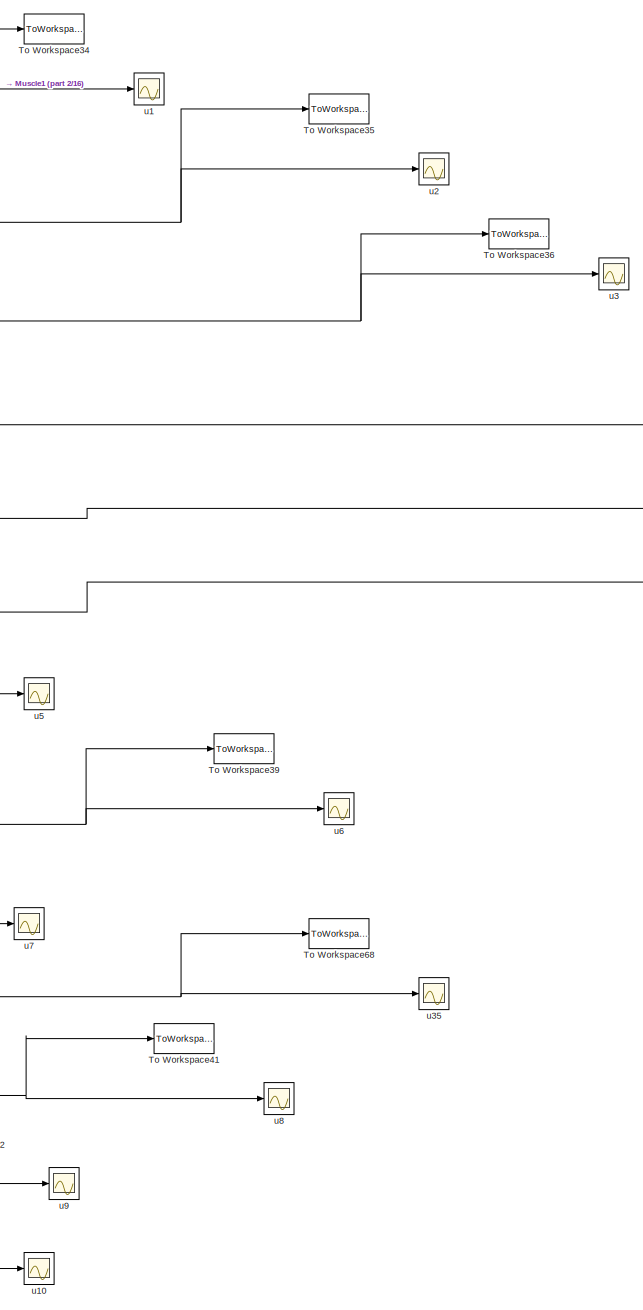
[diagram: root canvas - part 1/16, top left region]
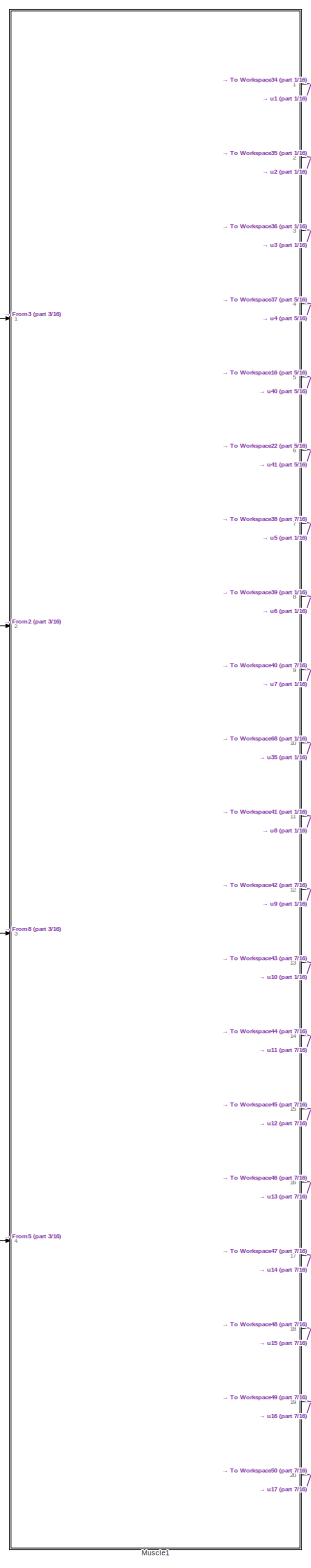
[diagram: root canvas - part 2/16, top left region]
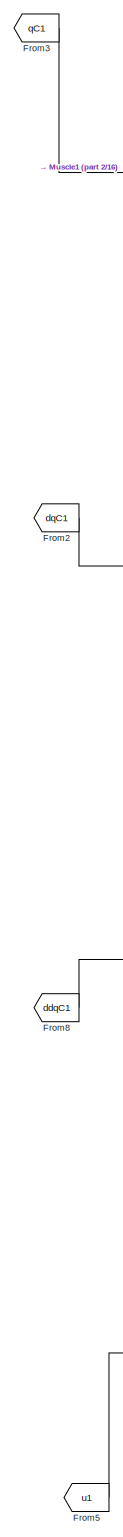
[diagram: root canvas - part 3/16, top left region]
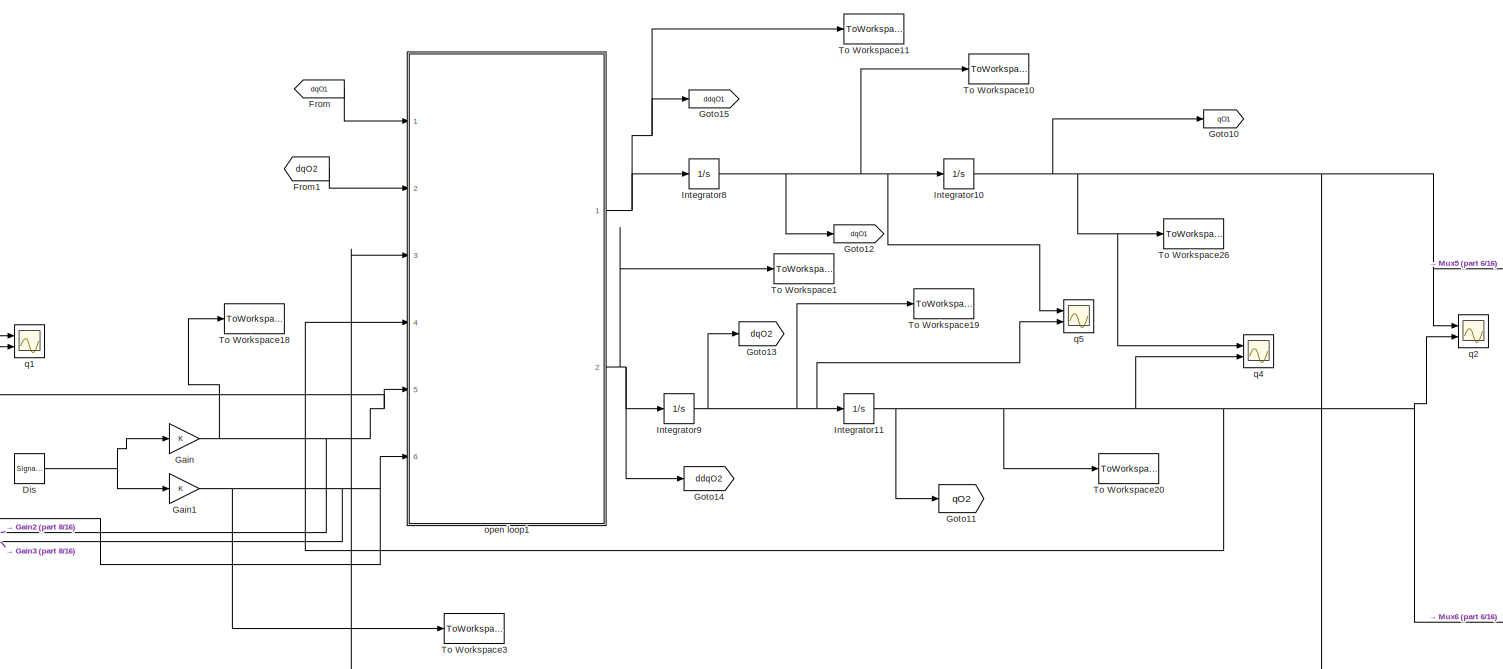
[diagram: root canvas - part 4/16, top center region]
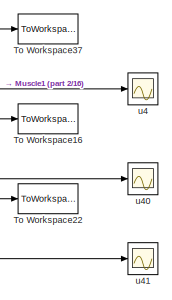
[diagram: root canvas - part 5/16, top center region]
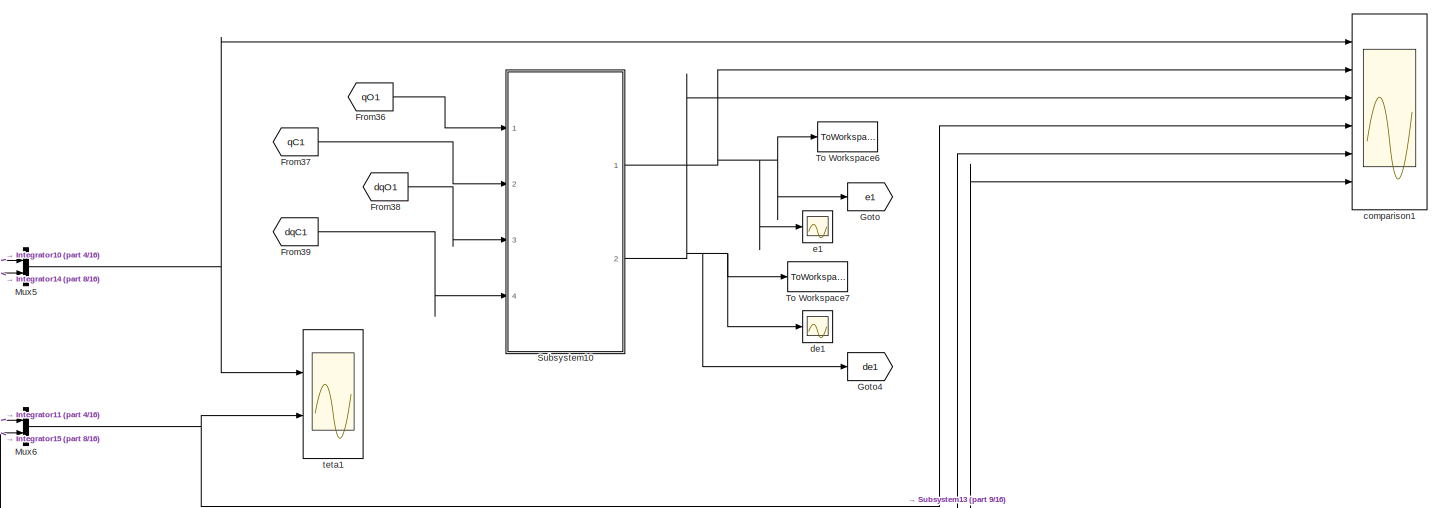
[diagram: root canvas - part 6/16, top right region]
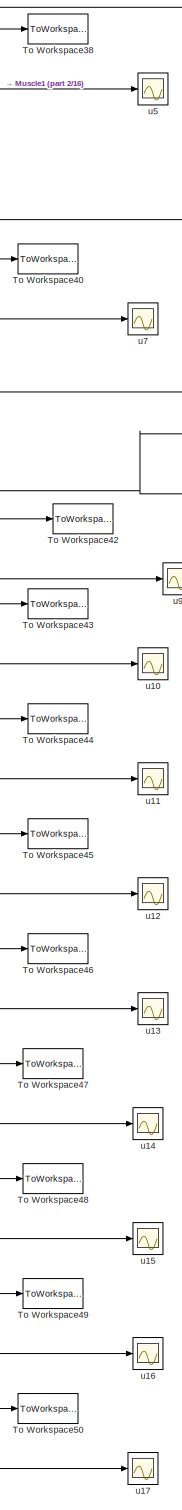
[diagram: root canvas - part 7/16, top left region]
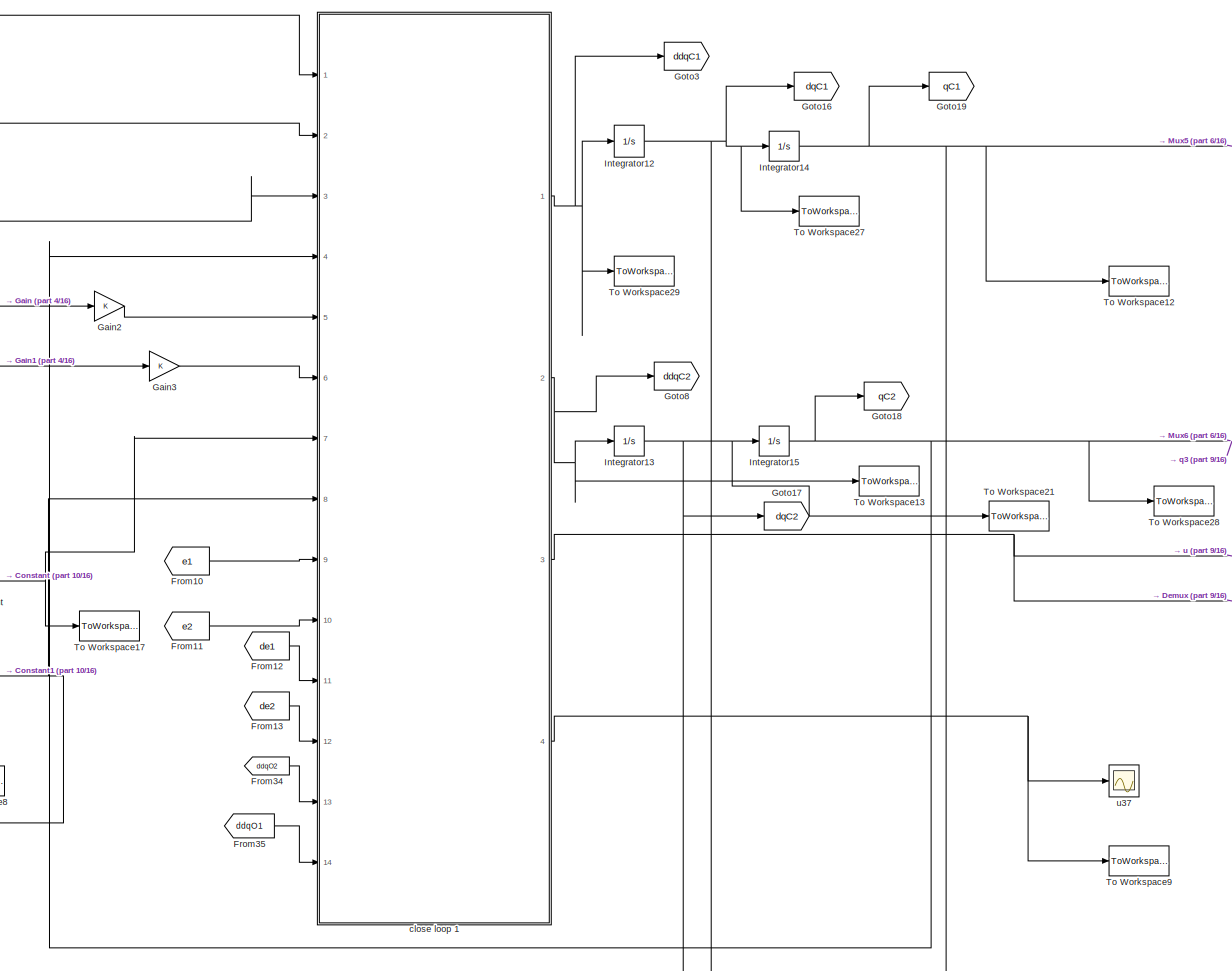
[diagram: root canvas - part 8/16, top center region]
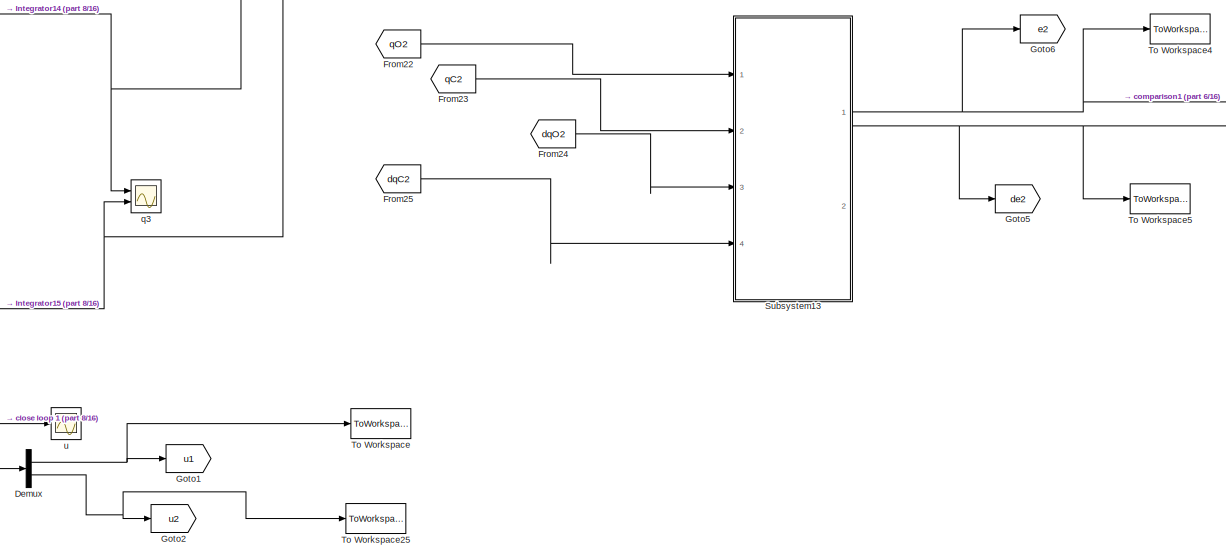
[diagram: root canvas - part 9/16, top right region]
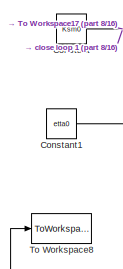
[diagram: root canvas - part 10/16, central region]
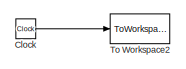
[diagram: root canvas - part 11/16, middle right region]
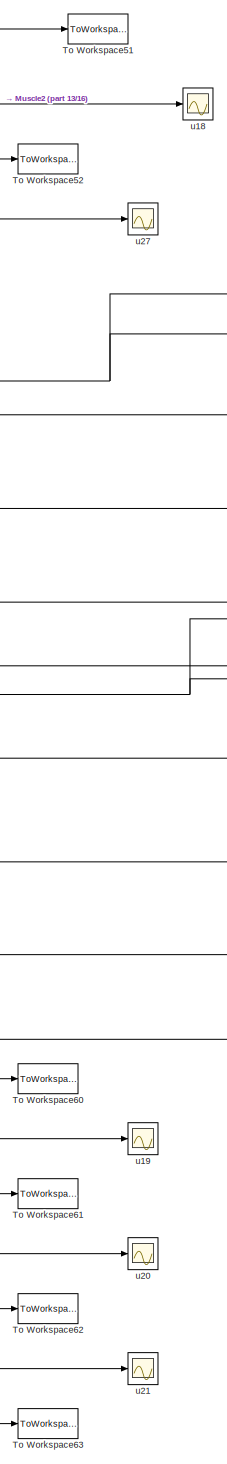
[diagram: root canvas - part 12/16, bottom left region]
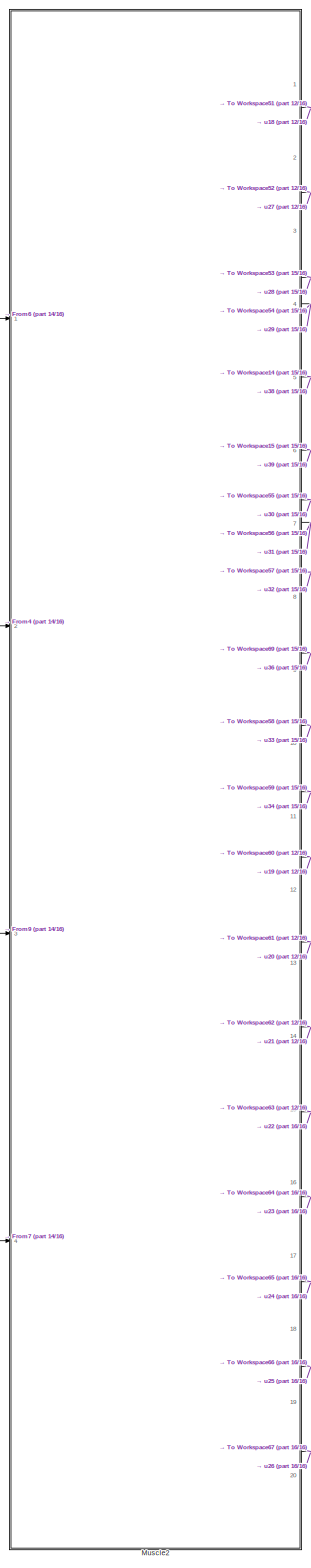
[diagram: root canvas - part 13/16, bottom left region]
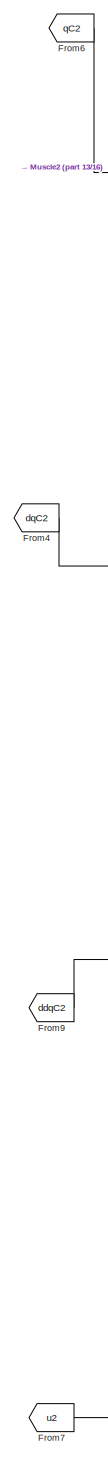
[diagram: root canvas - part 14/16, bottom left region]
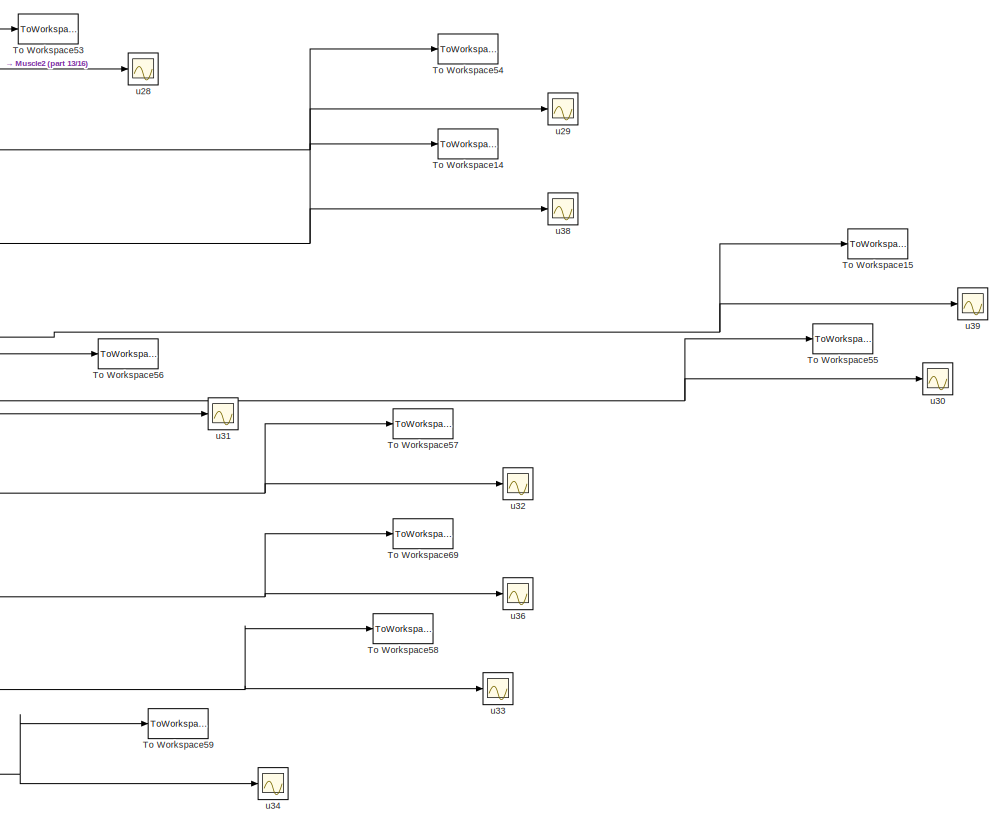
[diagram: root canvas - part 15/16, bottom left region]
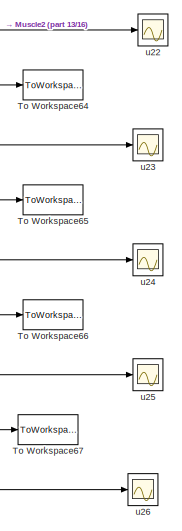
[diagram: root canvas - part 16/16, bottom left region]
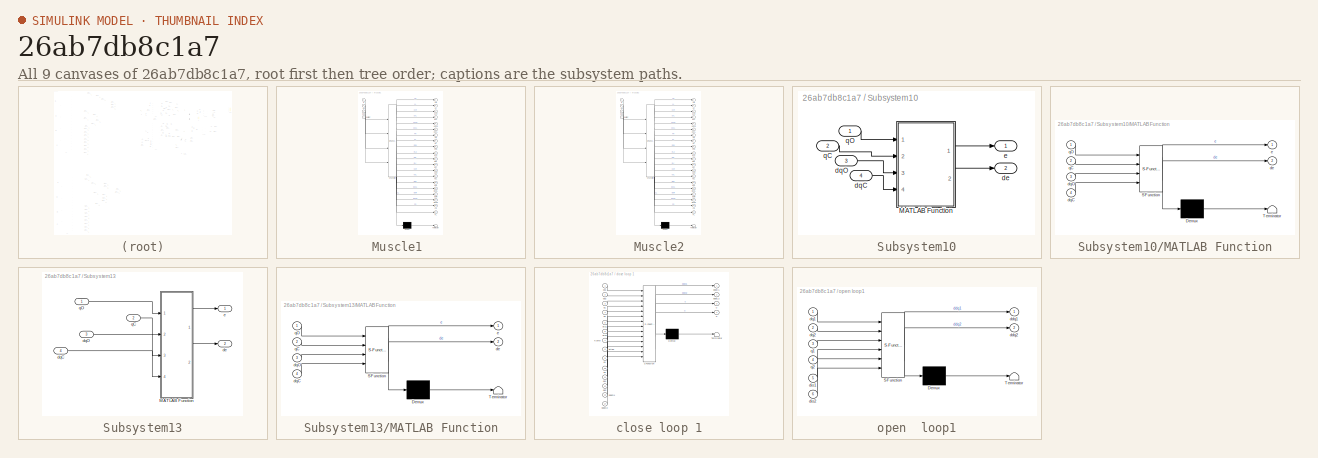
[diagram: thumbnail index - all 9 canvases of the model, root first then tree order]
MODEL slx_26ab7db8c1a7
KIND model
CONFIG AbsTol = auto
CONFIG EnableMultiTasking = off
CONFIG FixedStep = auto
CONFIG InitFcn = init\n
CONFIG MaxStep = auto
CONFIG MinStep = auto
CONFIG RelTol = .01
CONFIG SampleTimeConstraint = Unconstrained
CONFIG Solver = VariableStepAuto
CONFIG SolverName = VariableStepAuto
CONFIG StartTime = 0.0
CONFIG StopTime = 10
BLOCK [Clock] Clock
BLOCK [Constant] Constant
  Value = Ksm0
BLOCK [Constant] Constant1
  Value = etta0
BLOCK [Demux] Demux
  DisplayOption = bar
  Outputs = 2
  Ports = [1, 2]
BLOCK [SignalGenerator] Dis
  Amplitude = .1
  Ports = [0, 1]
  Units = rad/sec
BLOCK [From] From
  GotoTag = dqO1
BLOCK [From] From1
  GotoTag = dqO2
BLOCK [From] From10
  GotoTag = e1
BLOCK [From] From11
  GotoTag = e2
BLOCK [From] From12
  GotoTag = de1
BLOCK [From] From13
  GotoTag = de2
BLOCK [From] From2
  GotoTag = dqC1
BLOCK [From] From22
  GotoTag = qO2
BLOCK [From] From23
  GotoTag = qC2
BLOCK [From] From24
  GotoTag = dqO2
BLOCK [From] From25
  GotoTag = dqC2
BLOCK [From] From3
  GotoTag = qC1
BLOCK [From] From34
  GotoTag = ddqO2
BLOCK [From] From35
  GotoTag = ddqO1
BLOCK [From] From36
  GotoTag = qO1
BLOCK [From] From37
  GotoTag = qC1
BLOCK [From] From38
  GotoTag = dqO1
BLOCK [From] From39
  GotoTag = dqC1
BLOCK [From] From4
  GotoTag = dqC2
BLOCK [From] From5
  GotoTag = u1
BLOCK [From] From6
  GotoTag = qC2
BLOCK [From] From7
  GotoTag = u2
BLOCK [From] From8
  GotoTag = ddqC1
BLOCK [From] From9
  GotoTag = ddqC2
BLOCK [Gain] Gain
  OutDataTypeStr = Inherit: Inherit via internal rule
  ParamDataTypeStr = Inherit: Inherit via internal rule
  SaturateOnIntegerOverflow = off
BLOCK [Gain] Gain1
  OutDataTypeStr = Inherit: Inherit via internal rule
  ParamDataTypeStr = Inherit: Inherit via internal rule
  SaturateOnIntegerOverflow = off
BLOCK [Gain] Gain2
  OutDataTypeStr = Inherit: Inherit via internal rule
  ParamDataTypeStr = Inherit: Inherit via internal rule
  SaturateOnIntegerOverflow = off
BLOCK [Gain] Gain3
  OutDataTypeStr = Inherit: Inherit via internal rule
  ParamDataTypeStr = Inherit: Inherit via internal rule
  SaturateOnIntegerOverflow = off
BLOCK [Goto] Goto
  GotoTag = e1
BLOCK [Goto] Goto1
  GotoTag = u1
BLOCK [Goto] Goto10
  GotoTag = qO1
BLOCK [Goto] Goto11
  GotoTag = qO2
BLOCK [Goto] Goto12
  GotoTag = dqO1
BLOCK [Goto] Goto13
  GotoTag = dqO2
BLOCK [Goto] Goto14
  GotoTag = ddqO2
BLOCK [Goto] Goto15
  GotoTag = ddqO1
BLOCK [Goto] Goto16
  GotoTag = dqC1
BLOCK [Goto] Goto17
  GotoTag = dqC2
BLOCK [Goto] Goto18
  GotoTag = qC2
BLOCK [Goto] Goto19
  GotoTag = qC1
BLOCK [Goto] Goto2
  GotoTag = u2
BLOCK [Goto] Goto3
  GotoTag = ddqC1
BLOCK [Goto] Goto4
  GotoTag = de1
BLOCK [Goto] Goto5
  GotoTag = de2
BLOCK [Goto] Goto6
  GotoTag = e2
BLOCK [Goto] Goto8
  GotoTag = ddqC2
BLOCK [Integrator] Integrator10
  InitialCondition = .6
  Ports = [1, 1]
BLOCK [Integrator] Integrator11
  InitialCondition = .1
  Ports = [1, 1]
BLOCK [Integrator] Integrator12
  Ports = [1, 1]
BLOCK [Integrator] Integrator13
  Ports = [1, 1]
BLOCK [Integrator] Integrator14
  InitialCondition = .6
  Ports = [1, 1]
BLOCK [Integrator] Integrator15
  InitialCondition = .1
  Ports = [1, 1]
BLOCK [Integrator] Integrator8
  Ports = [1, 1]
BLOCK [Integrator] Integrator9
  Ports = [1, 1]
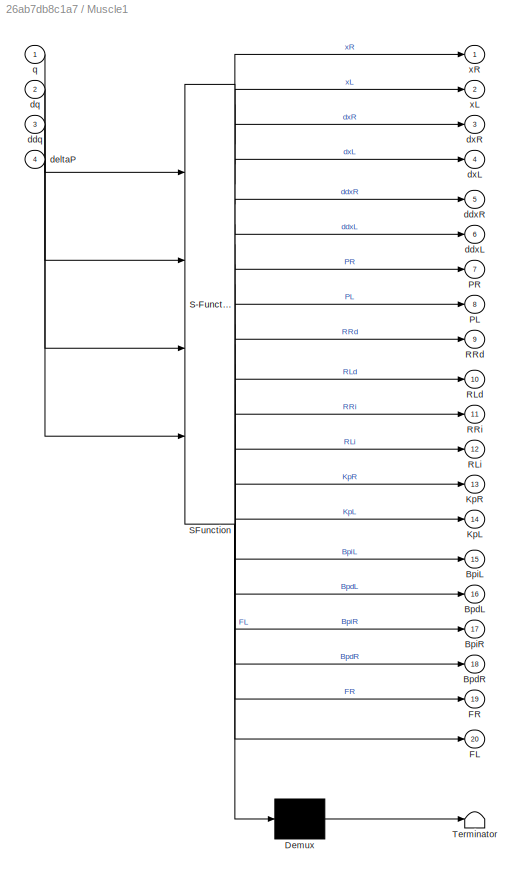
BLOCK [SubSystem] Muscle1 
  ErrorFcn = Stateflow.Translate.translate
  PermitHierarchicalResolution = ExplicitOnly
  Ports = [4, 20]
  RequestExecContextInheritance = off
  SFBlockType = MATLAB Function
  TreatAsAtomicUnit = on
  Variant = off
BLOCK [Demux] Muscle1 / Demux 
  Outputs = 1
  Ports = [1, 1]
BLOCK [S-Function] Muscle1 / SFunction 
  EnableBusSupport = on
  FunctionName = sf_sfun
  PortCounts = [4 21]
  Ports = [4, 21]
  SFcnIsStateOwnerBlock = off
  SFunctionDeploymentMode = off
  Tag = Stateflow S-Function karamy 2
BLOCK [Terminator] Muscle1 / Terminator 
BLOCK [Outport] Muscle1 /BpdL
  IconDisplay = Port number
  Port = 16
BLOCK [Outport] Muscle1 /BpdR
  IconDisplay = Port number
  Port = 18
BLOCK [Outport] Muscle1 /BpiL
  IconDisplay = Port number
  Port = 15
BLOCK [Outport] Muscle1 /BpiR
  IconDisplay = Port number
  Port = 17
BLOCK [Outport] Muscle1 /FL
  IconDisplay = Port number
  Port = 20
BLOCK [Outport] Muscle1 /FR
  IconDisplay = Port number
  Port = 19
BLOCK [Outport] Muscle1 /KpL
  IconDisplay = Port number
  Port = 14
BLOCK [Outport] Muscle1 /KpR
  IconDisplay = Port number
  Port = 13
BLOCK [Outport] Muscle1 /PL
  IconDisplay = Port number
  Port = 8
BLOCK [Outport] Muscle1 /PR
  IconDisplay = Port number
  Port = 7
BLOCK [Outport] Muscle1 /RLd
  IconDisplay = Port number
  Port = 10
BLOCK [Outport] Muscle1 /RLi
  IconDisplay = Port number
  Port = 12
BLOCK [Outport] Muscle1 /RRd
  IconDisplay = Port number
  Port = 9
BLOCK [Outport] Muscle1 /RRi
  IconDisplay = Port number
  Port = 11
BLOCK [Inport] Muscle1 /ddq
  IconDisplay = Port number
  Port = 3
BLOCK [Outport] Muscle1 /ddxL
  IconDisplay = Port number
  Port = 6
BLOCK [Outport] Muscle1 /ddxR
  IconDisplay = Port number
  Port = 5
BLOCK [Inport] Muscle1 /deltaP
  IconDisplay = Port number
  Port = 4
BLOCK [Inport] Muscle1 /dq
  IconDisplay = Port number
  Port = 2
BLOCK [Outport] Muscle1 /dxL
  IconDisplay = Port number
  Port = 4
BLOCK [Outport] Muscle1 /dxR
  IconDisplay = Port number
  Port = 3
BLOCK [Inport] Muscle1 /q
  IconDisplay = Port number
BLOCK [Outport] Muscle1 /xL
  IconDisplay = Port number
  Port = 2
BLOCK [Outport] Muscle1 /xR
  IconDisplay = Port number
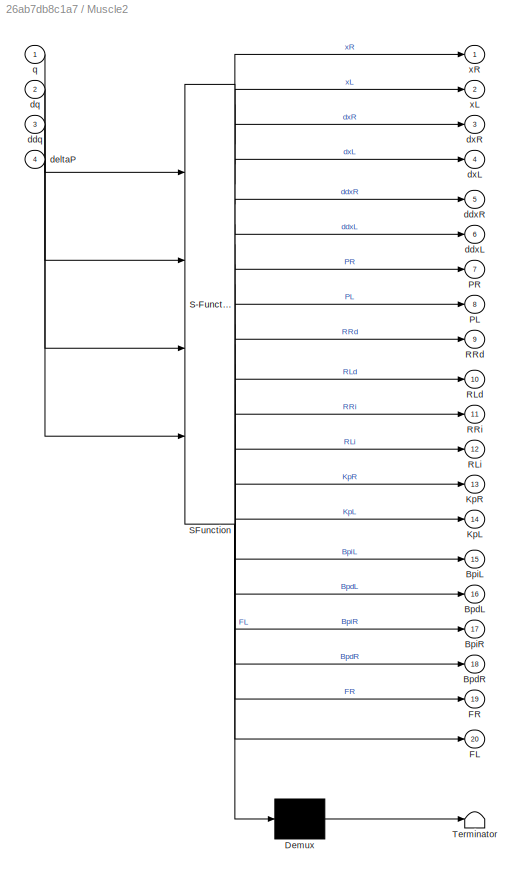
BLOCK [SubSystem] Muscle2
  ErrorFcn = Stateflow.Translate.translate
  PermitHierarchicalResolution = ExplicitOnly
  Ports = [4, 20]
  RequestExecContextInheritance = off
  SFBlockType = MATLAB Function
  TreatAsAtomicUnit = on
  Variant = off
BLOCK [Demux] Muscle2/ Demux 
  Outputs = 1
  Ports = [1, 1]
BLOCK [S-Function] Muscle2/ SFunction 
  EnableBusSupport = on
  FunctionName = sf_sfun
  PortCounts = [4 21]
  Ports = [4, 21]
  SFcnIsStateOwnerBlock = off
  SFunctionDeploymentMode = off
  Tag = Stateflow S-Function karamy 1
BLOCK [Terminator] Muscle2/ Terminator 
BLOCK [Outport] Muscle2/BpdL
  IconDisplay = Port number
  Port = 16
BLOCK [Outport] Muscle2/BpdR
  IconDisplay = Port number
  Port = 18
BLOCK [Outport] Muscle2/BpiL
  IconDisplay = Port number
  Port = 15
BLOCK [Outport] Muscle2/BpiR
  IconDisplay = Port number
  Port = 17
BLOCK [Outport] Muscle2/FL
  IconDisplay = Port number
  Port = 20
BLOCK [Outport] Muscle2/FR
  IconDisplay = Port number
  Port = 19
BLOCK [Outport] Muscle2/KpL
  IconDisplay = Port number
  Port = 14
BLOCK [Outport] Muscle2/KpR
  IconDisplay = Port number
  Port = 13
BLOCK [Outport] Muscle2/PL
  IconDisplay = Port number
  Port = 8
BLOCK [Outport] Muscle2/PR
  IconDisplay = Port number
  Port = 7
BLOCK [Outport] Muscle2/RLd
  IconDisplay = Port number
  Port = 10
BLOCK [Outport] Muscle2/RLi
  IconDisplay = Port number
  Port = 12
BLOCK [Outport] Muscle2/RRd
  IconDisplay = Port number
  Port = 9
BLOCK [Outport] Muscle2/RRi
  IconDisplay = Port number
  Port = 11
BLOCK [Inport] Muscle2/ddq
  IconDisplay = Port number
  Port = 3
BLOCK [Outport] Muscle2/ddxL
  IconDisplay = Port number
  Port = 6
BLOCK [Outport] Muscle2/ddxR
  IconDisplay = Port number
  Port = 5
BLOCK [Inport] Muscle2/deltaP
  IconDisplay = Port number
  Port = 4
BLOCK [Inport] Muscle2/dq
  IconDisplay = Port number
  Port = 2
BLOCK [Outport] Muscle2/dxL
  IconDisplay = Port number
  Port = 4
BLOCK [Outport] Muscle2/dxR
  IconDisplay = Port number
  Port = 3
BLOCK [Inport] Muscle2/q
  IconDisplay = Port number
BLOCK [Outport] Muscle2/xL
  IconDisplay = Port number
  Port = 2
BLOCK [Outport] Muscle2/xR
  IconDisplay = Port number
BLOCK [Mux] Mux5
  DisplayOption = bar
  Inputs = 2
  Ports = [2, 1]
BLOCK [Mux] Mux6
  DisplayOption = bar
  Inputs = 2
  Ports = [2, 1]
BLOCK [SubSystem] Subsystem10
  Ports = [4, 2]
  RequestExecContextInheritance = off
  Variant = off
BLOCK [SubSystem] Subsystem10/MATLAB Function
  ErrorFcn = Stateflow.Translate.translate
  PermitHierarchicalResolution = ExplicitOnly
  Ports = [4, 2]
  RequestExecContextInheritance = off
  SFBlockType = MATLAB Function
  TreatAsAtomicUnit = on
  Variant = off
BLOCK [Demux] Subsystem10/MATLAB Function/ Demux 
  Outputs = 1
  Ports = [1, 1]
BLOCK [S-Function] Subsystem10/MATLAB Function/ SFunction 
  EnableBusSupport = on
  FunctionName = sf_sfun
  PortCounts = [4 3]
  Ports = [4, 3]
  SFcnIsStateOwnerBlock = off
  SFunctionDeploymentMode = off
  Tag = Stateflow S-Function karamy 11
BLOCK [Terminator] Subsystem10/MATLAB Function/ Terminator 
BLOCK [Outport] Subsystem10/MATLAB Function/de
  IconDisplay = Port number
  Port = 2
BLOCK [Inport] Subsystem10/MATLAB Function/dqC
  IconDisplay = Port number
  Port = 4
BLOCK [Inport] Subsystem10/MATLAB Function/dqO
  IconDisplay = Port number
  Port = 3
BLOCK [Outport] Subsystem10/MATLAB Function/e
  IconDisplay = Port number
BLOCK [Inport] Subsystem10/MATLAB Function/qC
  IconDisplay = Port number
  Port = 2
BLOCK [Inport] Subsystem10/MATLAB Function/qO
  IconDisplay = Port number
BLOCK [Outport] Subsystem10/de
  IconDisplay = Port number
  Port = 2
BLOCK [Inport] Subsystem10/dqC
  IconDisplay = Port number
  Port = 4
BLOCK [Inport] Subsystem10/dqO
  IconDisplay = Port number
  Port = 3
BLOCK [Outport] Subsystem10/e
  IconDisplay = Port number
BLOCK [Inport] Subsystem10/qC
  IconDisplay = Port number
  Port = 2
BLOCK [Inport] Subsystem10/qO
  IconDisplay = Port number
BLOCK [SubSystem] Subsystem13
  Ports = [4, 2]
  RequestExecContextInheritance = off
  Variant = off
BLOCK [SubSystem] Subsystem13/MATLAB Function
  ErrorFcn = Stateflow.Translate.translate
  PermitHierarchicalResolution = ExplicitOnly
  Ports = [4, 2]
  RequestExecContextInheritance = off
  SFBlockType = MATLAB Function
  TreatAsAtomicUnit = on
  Variant = off
BLOCK [Demux] Subsystem13/MATLAB Function/ Demux 
  Outputs = 1
  Ports = [1, 1]
BLOCK [S-Function] Subsystem13/MATLAB Function/ SFunction 
  EnableBusSupport = on
  FunctionName = sf_sfun
  PortCounts = [4 3]
  Ports = [4, 3]
  SFcnIsStateOwnerBlock = off
  SFunctionDeploymentMode = off
  Tag = Stateflow S-Function karamy 14
BLOCK [Terminator] Subsystem13/MATLAB Function/ Terminator 
BLOCK [Outport] Subsystem13/MATLAB Function/de
  IconDisplay = Port number
  Port = 2
BLOCK [Inport] Subsystem13/MATLAB Function/dqC
  IconDisplay = Port number
  Port = 4
BLOCK [Inport] Subsystem13/MATLAB Function/dqO
  IconDisplay = Port number
  Port = 3
BLOCK [Outport] Subsystem13/MATLAB Function/e
  IconDisplay = Port number
BLOCK [Inport] Subsystem13/MATLAB Function/qC
  IconDisplay = Port number
  Port = 2
BLOCK [Inport] Subsystem13/MATLAB Function/qO
  IconDisplay = Port number
BLOCK [Outport] Subsystem13/de
  IconDisplay = Port number
  Port = 2
BLOCK [Inport] Subsystem13/dqC
  IconDisplay = Port number
  Port = 4
BLOCK [Inport] Subsystem13/dqO
  IconDisplay = Port number
  Port = 3
BLOCK [Outport] Subsystem13/e
  IconDisplay = Port number
BLOCK [Inport] Subsystem13/qC
  IconDisplay = Port number
  Port = 2
BLOCK [Inport] Subsystem13/qO
  IconDisplay = Port number
BLOCK [ToWorkspace] To Workspace
  FixptAsFi = on
  MaxDataPoints = inf
  Ports = [1]
  SampleTime = -1
  Save2DSignal = 3-D array (concatenate along third dimension)
  VariableName = u1
BLOCK [ToWorkspace] To Workspace1
  FixptAsFi = on
  MaxDataPoints = inf
  Ports = [1]
  SampleTime = -1
  Save2DSignal = 3-D array (concatenate along third dimension)
  VariableName = ddqO2
BLOCK [ToWorkspace] To Workspace10
  FixptAsFi = on
  MaxDataPoints = inf
  Ports = [1]
  SampleTime = -1
  Save2DSignal = 3-D array (concatenate along third dimension)
  VariableName = dqO1
BLOCK [ToWorkspace] To Workspace11
  FixptAsFi = on
  MaxDataPoints = inf
  Ports = [1]
  SampleTime = -1
  Save2DSignal = 3-D array (concatenate along third dimension)
  VariableName = ddqO1
BLOCK [ToWorkspace] To Workspace12
  FixptAsFi = on
  MaxDataPoints = inf
  Ports = [1]
  SampleTime = -1
  Save2DSignal = 3-D array (concatenate along third dimension)
  VariableName = qC1
BLOCK [ToWorkspace] To Workspace13
  FixptAsFi = on
  MaxDataPoints = inf
  Ports = [1]
  SampleTime = -1
  Save2DSignal = 3-D array (concatenate along third dimension)
  VariableName = ddqC2
BLOCK [ToWorkspace] To Workspace14
  FixptAsFi = on
  MaxDataPoints = inf
  Ports = [1]
  SampleTime = -1
  Save2DSignal = 3-D array (concatenate along third dimension)
  VariableName = ddxR2
BLOCK [ToWorkspace] To Workspace15
  FixptAsFi = on
  MaxDataPoints = inf
  Ports = [1]
  SampleTime = -1
  Save2DSignal = 3-D array (concatenate along third dimension)
  VariableName = ddxL2
BLOCK [ToWorkspace] To Workspace16
  FixptAsFi = on
  MaxDataPoints = inf
  Ports = [1]
  SampleTime = -1
  Save2DSignal = 3-D array (concatenate along third dimension)
  VariableName = ddxR1
BLOCK [ToWorkspace] To Workspace17
  FixptAsFi = on
  MaxDataPoints = inf
  Ports = [1]
  SampleTime = -1
  Save2DSignal = 3-D array (concatenate along third dimension)
  VariableName = Ksm
BLOCK [ToWorkspace] To Workspace18
  FixptAsFi = on
  MaxDataPoints = inf
  Ports = [1]
  SampleTime = -1
  Save2DSignal = 3-D array (concatenate along third dimension)
  VariableName = dis1
BLOCK [ToWorkspace] To Workspace19
  FixptAsFi = on
  MaxDataPoints = inf
  Ports = [1]
  SampleTime = -1
  Save2DSignal = 3-D array (concatenate along third dimension)
  VariableName = dqO2
BLOCK [ToWorkspace] To Workspace2
  FixptAsFi = on
  MaxDataPoints = inf
  Ports = [1]
  SampleTime = -1
  Save2DSignal = 3-D array (concatenate along third dimension)
  VariableName = time
BLOCK [ToWorkspace] To Workspace20
  FixptAsFi = on
  MaxDataPoints = inf
  Ports = [1]
  SampleTime = -1
  Save2DSignal = 3-D array (concatenate along third dimension)
  VariableName = qO2
BLOCK [ToWorkspace] To Workspace21
  FixptAsFi = on
  MaxDataPoints = inf
  Ports = [1]
  SampleTime = -1
  Save2DSignal = 3-D array (concatenate along third dimension)
  VariableName = dqC2
BLOCK [ToWorkspace] To Workspace22
  FixptAsFi = on
  MaxDataPoints = inf
  Ports = [1]
  SampleTime = -1
  Save2DSignal = 3-D array (concatenate along third dimension)
  VariableName = ddxL1
BLOCK [ToWorkspace] To Workspace25
  FixptAsFi = on
  MaxDataPoints = inf
  Ports = [1]
  SampleTime = -1
  Save2DSignal = 3-D array (concatenate along third dimension)
  VariableName = u2
BLOCK [ToWorkspace] To Workspace26
  FixptAsFi = on
  MaxDataPoints = inf
  Ports = [1]
  SampleTime = -1
  Save2DSignal = 3-D array (concatenate along third dimension)
  VariableName = qO1
BLOCK [ToWorkspace] To Workspace27
  FixptAsFi = on
  MaxDataPoints = inf
  Ports = [1]
  SampleTime = -1
  Save2DSignal = 3-D array (concatenate along third dimension)
  VariableName = dqC1
BLOCK [ToWorkspace] To Workspace28
  FixptAsFi = on
  MaxDataPoints = inf
  Ports = [1]
  SampleTime = -1
  Save2DSignal = 3-D array (concatenate along third dimension)
  VariableName = qC2
BLOCK [ToWorkspace] To Workspace29
  FixptAsFi = on
  MaxDataPoints = inf
  Ports = [1]
  SampleTime = -1
  Save2DSignal = 3-D array (concatenate along third dimension)
  VariableName = ddqC1
BLOCK [ToWorkspace] To Workspace3
  FixptAsFi = on
  MaxDataPoints = inf
  Ports = [1]
  SampleTime = -1
  Save2DSignal = 3-D array (concatenate along third dimension)
  VariableName = dis2
BLOCK [ToWorkspace] To Workspace34
  FixptAsFi = on
  MaxDataPoints = inf
  Ports = [1]
  SampleTime = -1
  Save2DSignal = 3-D array (concatenate along third dimension)
  VariableName = xR1
BLOCK [ToWorkspace] To Workspace35
  FixptAsFi = on
  MaxDataPoints = inf
  Ports = [1]
  SampleTime = -1
  Save2DSignal = 3-D array (concatenate along third dimension)
  VariableName = xL1
BLOCK [ToWorkspace] To Workspace36
  FixptAsFi = on
  MaxDataPoints = inf
  Ports = [1]
  SampleTime = -1
  Save2DSignal = 3-D array (concatenate along third dimension)
  VariableName = dxR1
BLOCK [ToWorkspace] To Workspace37
  FixptAsFi = on
  MaxDataPoints = inf
  Ports = [1]
  SampleTime = -1
  Save2DSignal = 3-D array (concatenate along third dimension)
  VariableName = dxL1
BLOCK [ToWorkspace] To Workspace38
  FixptAsFi = on
  MaxDataPoints = inf
  Ports = [1]
  SampleTime = -1
  Save2DSignal = 3-D array (concatenate along third dimension)
  VariableName = PR1
BLOCK [ToWorkspace] To Workspace39
  FixptAsFi = on
  MaxDataPoints = inf
  Ports = [1]
  SampleTime = -1
  Save2DSignal = 3-D array (concatenate along third dimension)
  VariableName = PL1
BLOCK [ToWorkspace] To Workspace4
  FixptAsFi = on
  MaxDataPoints = inf
  Ports = [1]
  SampleTime = -1
  Save2DSignal = 3-D array (concatenate along third dimension)
  VariableName = e2
BLOCK [ToWorkspace] To Workspace40
  FixptAsFi = on
  MaxDataPoints = inf
  Ports = [1]
  SampleTime = -1
  Save2DSignal = 3-D array (concatenate along third dimension)
  VariableName = RRd1
BLOCK [ToWorkspace] To Workspace41
  FixptAsFi = on
  MaxDataPoints = inf
  Ports = [1]
  SampleTime = -1
  Save2DSignal = 3-D array (concatenate along third dimension)
  VariableName = RRi1
BLOCK [ToWorkspace] To Workspace42
  FixptAsFi = on
  MaxDataPoints = inf
  Ports = [1]
  SampleTime = -1
  Save2DSignal = 3-D array (concatenate along third dimension)
  VariableName = RLi1
BLOCK [ToWorkspace] To Workspace43
  FixptAsFi = on
  MaxDataPoints = inf
  Ports = [1]
  SampleTime = -1
  Save2DSignal = 3-D array (concatenate along third dimension)
  VariableName = KpR1
BLOCK [ToWorkspace] To Workspace44
  FixptAsFi = on
  MaxDataPoints = inf
  Ports = [1]
  SampleTime = -1
  Save2DSignal = 3-D array (concatenate along third dimension)
  VariableName = KpL1
BLOCK [ToWorkspace] To Workspace45
  FixptAsFi = on
  MaxDataPoints = inf
  Ports = [1]
  SampleTime = -1
  Save2DSignal = 3-D array (concatenate along third dimension)
  VariableName = BpiL1
BLOCK [ToWorkspace] To Workspace46
  FixptAsFi = on
  MaxDataPoints = inf
  Ports = [1]
  SampleTime = -1
  Save2DSignal = 3-D array (concatenate along third dimension)
  VariableName = BpdL1
BLOCK [ToWorkspace] To Workspace47
  FixptAsFi = on
  MaxDataPoints = inf
  Ports = [1]
  SampleTime = -1
  Save2DSignal = 3-D array (concatenate along third dimension)
  VariableName = BpiR1
BLOCK [ToWorkspace] To Workspace48
  FixptAsFi = on
  MaxDataPoints = inf
  Ports = [1]
  SampleTime = -1
  Save2DSignal = 3-D array (concatenate along third dimension)
  VariableName = BpdR1
BLOCK [ToWorkspace] To Workspace49
  FixptAsFi = on
  MaxDataPoints = inf
  Ports = [1]
  SampleTime = -1
  Save2DSignal = 3-D array (concatenate along third dimension)
  VariableName = FR1
BLOCK [ToWorkspace] To Workspace5
  FixptAsFi = on
  MaxDataPoints = inf
  Ports = [1]
  SampleTime = -1
  Save2DSignal = 3-D array (concatenate along third dimension)
  VariableName = de2
BLOCK [ToWorkspace] To Workspace50
  FixptAsFi = on
  MaxDataPoints = inf
  Ports = [1]
  SampleTime = -1
  Save2DSignal = 3-D array (concatenate along third dimension)
  VariableName = FL1
BLOCK [ToWorkspace] To Workspace51
  FixptAsFi = on
  MaxDataPoints = inf
  Ports = [1]
  SampleTime = -1
  Save2DSignal = 3-D array (concatenate along third dimension)
  VariableName = xR2
BLOCK [ToWorkspace] To Workspace52
  FixptAsFi = on
  MaxDataPoints = inf
  Ports = [1]
  SampleTime = -1
  Save2DSignal = 3-D array (concatenate along third dimension)
  VariableName = xL2
BLOCK [ToWorkspace] To Workspace53
  FixptAsFi = on
  MaxDataPoints = inf
  Ports = [1]
  SampleTime = -1
  Save2DSignal = 3-D array (concatenate along third dimension)
  VariableName = dxR2
BLOCK [ToWorkspace] To Workspace54
  FixptAsFi = on
  MaxDataPoints = inf
  Ports = [1]
  SampleTime = -1
  Save2DSignal = 3-D array (concatenate along third dimension)
  VariableName = dxL2
BLOCK [ToWorkspace] To Workspace55
  FixptAsFi = on
  MaxDataPoints = inf
  Ports = [1]
  SampleTime = -1
  Save2DSignal = 3-D array (concatenate along third dimension)
  VariableName = PR2
BLOCK [ToWorkspace] To Workspace56
  FixptAsFi = on
  MaxDataPoints = inf
  Ports = [1]
  SampleTime = -1
  Save2DSignal = 3-D array (concatenate along third dimension)
  VariableName = PL2
BLOCK [ToWorkspace] To Workspace57
  FixptAsFi = on
  MaxDataPoints = inf
  Ports = [1]
  SampleTime = -1
  Save2DSignal = 3-D array (concatenate along third dimension)
  VariableName = RRd2
BLOCK [ToWorkspace] To Workspace58
  FixptAsFi = on
  MaxDataPoints = inf
  Ports = [1]
  SampleTime = -1
  Save2DSignal = 3-D array (concatenate along third dimension)
  VariableName = RRi2
BLOCK [ToWorkspace] To Workspace59
  FixptAsFi = on
  MaxDataPoints = inf
  Ports = [1]
  SampleTime = -1
  Save2DSignal = 3-D array (concatenate along third dimension)
  VariableName = RLi2
BLOCK [ToWorkspace] To Workspace6
  FixptAsFi = on
  MaxDataPoints = inf
  Ports = [1]
  SampleTime = -1
  Save2DSignal = 3-D array (concatenate along third dimension)
  VariableName = e1
BLOCK [ToWorkspace] To Workspace60
  FixptAsFi = on
  MaxDataPoints = inf
  Ports = [1]
  SampleTime = -1
  Save2DSignal = 3-D array (concatenate along third dimension)
  VariableName = KpR2
BLOCK [ToWorkspace] To Workspace61
  FixptAsFi = on
  MaxDataPoints = inf
  Ports = [1]
  SampleTime = -1
  Save2DSignal = 3-D array (concatenate along third dimension)
  VariableName = KpL2
BLOCK [ToWorkspace] To Workspace62
  FixptAsFi = on
  MaxDataPoints = inf
  Ports = [1]
  SampleTime = -1
  Save2DSignal = 3-D array (concatenate along third dimension)
  VariableName = BpiL2
BLOCK [ToWorkspace] To Workspace63
  FixptAsFi = on
  MaxDataPoints = inf
  Ports = [1]
  SampleTime = -1
  Save2DSignal = 3-D array (concatenate along third dimension)
  VariableName = BpdL2
BLOCK [ToWorkspace] To Workspace64
  FixptAsFi = on
  MaxDataPoints = inf
  Ports = [1]
  SampleTime = -1
  Save2DSignal = 3-D array (concatenate along third dimension)
  VariableName = BpiR2
BLOCK [ToWorkspace] To Workspace65
  FixptAsFi = on
  MaxDataPoints = inf
  Ports = [1]
  SampleTime = -1
  Save2DSignal = 3-D array (concatenate along third dimension)
  VariableName = BpdR2
BLOCK [ToWorkspace] To Workspace66
  FixptAsFi = on
  MaxDataPoints = inf
  Ports = [1]
  SampleTime = -1
  Save2DSignal = 3-D array (concatenate along third dimension)
  VariableName = FR2
BLOCK [ToWorkspace] To Workspace67
  FixptAsFi = on
  MaxDataPoints = inf
  Ports = [1]
  SampleTime = -1
  Save2DSignal = 3-D array (concatenate along third dimension)
  VariableName = FL2
BLOCK [ToWorkspace] To Workspace68
  FixptAsFi = on
  MaxDataPoints = inf
  Ports = [1]
  SampleTime = -1
  Save2DSignal = 3-D array (concatenate along third dimension)
  VariableName = RLd1
BLOCK [ToWorkspace] To Workspace69
  FixptAsFi = on
  MaxDataPoints = inf
  Ports = [1]
  SampleTime = -1
  Save2DSignal = 3-D array (concatenate along third dimension)
  VariableName = RLd2
BLOCK [ToWorkspace] To Workspace7
  FixptAsFi = on
  MaxDataPoints = inf
  Ports = [1]
  SampleTime = -1
  Save2DSignal = 3-D array (concatenate along third dimension)
  VariableName = de1
BLOCK [ToWorkspace] To Workspace8
  FixptAsFi = on
  MaxDataPoints = inf
  Ports = [1]
  SampleTime = -1
  Save2DSignal = 3-D array (concatenate along third dimension)
  VariableName = etta
BLOCK [ToWorkspace] To Workspace9
  FixptAsFi = on
  MaxDataPoints = inf
  Ports = [1]
  SampleTime = -1
  Save2DSignal = 3-D array (concatenate along third dimension)
  VariableName = S
BLOCK [SubSystem] close loop 1
  ErrorFcn = Stateflow.Translate.translate
  PermitHierarchicalResolution = ExplicitOnly
  Ports = [14, 4]
  RequestExecContextInheritance = off
  SFBlockType = MATLAB Function
  TreatAsAtomicUnit = on
  Variant = off
BLOCK [Demux] close loop 1/ Demux 
  Outputs = 1
  Ports = [1, 1]
BLOCK [S-Function] close loop 1/ SFunction 
  EnableBusSupport = on
  FunctionName = sf_sfun
  PortCounts = [14 5]
  Ports = [14, 5]
  SFcnIsStateOwnerBlock = off
  SFunctionDeploymentMode = off
  Tag = Stateflow S-Function karamy 19
BLOCK [Terminator] close loop 1/ Terminator 
BLOCK [Inport] close loop 1/Ksm0
  IconDisplay = Port number
  Port = 7
BLOCK [Outport] close loop 1/S
  IconDisplay = Port number
  Port = 4
BLOCK [Outport] close loop 1/ddqC1
  IconDisplay = Port number
BLOCK [Outport] close loop 1/ddqC2
  IconDisplay = Port number
  Port = 2
BLOCK [Inport] close loop 1/ddqO1
  IconDisplay = Port number
  Port = 13
BLOCK [Inport] close loop 1/ddqO2
  IconDisplay = Port number
  Port = 14
BLOCK [Inport] close loop 1/de1
  IconDisplay = Port number
  Port = 11
BLOCK [Inport] close loop 1/de2
  IconDisplay = Port number
  Port = 12
BLOCK [Inport] close loop 1/dis1
  IconDisplay = Port number
  Port = 5
BLOCK [Inport] close loop 1/dis2
  IconDisplay = Port number
  Port = 6
BLOCK [Inport] close loop 1/dq1
  IconDisplay = Port number
BLOCK [Inport] close loop 1/dq2
  IconDisplay = Port number
  Port = 2
BLOCK [Inport] close loop 1/e1
  IconDisplay = Port number
  Port = 9
BLOCK [Inport] close loop 1/e2
  IconDisplay = Port number
  Port = 10
BLOCK [Inport] close loop 1/etta0
  IconDisplay = Port number
  Port = 8
BLOCK [Inport] close loop 1/q1
  IconDisplay = Port number
  Port = 3
BLOCK [Inport] close loop 1/q2
  IconDisplay = Port number
  Port = 4
BLOCK [Outport] close loop 1/u
  IconDisplay = Port number
  Port = 3
BLOCK [Scope] comparison1
  NumInputPorts = 6
  Ports = [6]
  ScopeSpecificationString = Simulink.scopes.TimeScopeBlockCfg('CurrentConfiguration', extmgr.ConfigurationSet(extmgr.Configuration('Core','General UI',true),extmgr.Configuration('Core','Source UI',true),extmgr.Configuration('Sources','WiredSimulink',true,'DataLoggingVariableName','ScopeData1'),extmgr.Configuration('Visuals','Time Domain',true,'SerializedDisplays',{struct('MinYLimReal','-3.8116','MaxYLimReal','40.30438','YLab...<+4753ch>
BLOCK [Scope] de1
  NumInputPorts = 1
  Ports = [1]
  ScopeSpecificationString = C++SS(StrPVP('SaveName','ScopeData2'),StrPVP('LimitDataPoints','on'),StrPVP('DataFormat','Array'),StrPVP('Decimation','1'),StrPVP('BlockParamSampleInput','off'))
BLOCK [Scope] e1
  NumInputPorts = 1
  Ports = [1]
  ScopeSpecificationString = C++SS(StrPVP('SaveName','ScopeData3'),StrPVP('LimitDataPoints','on'),StrPVP('DataFormat','Array'),StrPVP('Decimation','1'),StrPVP('BlockParamSampleInput','off'))
BLOCK [SubSystem] open  loop1
  ErrorFcn = Stateflow.Translate.translate
  PermitHierarchicalResolution = ExplicitOnly
  Ports = [6, 2]
  RequestExecContextInheritance = off
  SFBlockType = MATLAB Function
  TreatAsAtomicUnit = on
  Variant = off
BLOCK [Demux] open  loop1/ Demux 
  Outputs = 1
  Ports = [1, 1]
BLOCK [S-Function] open  loop1/ SFunction 
  EnableBusSupport = on
  FunctionName = sf_sfun
  PortCounts = [6 3]
  Ports = [6, 3]
  SFcnIsStateOwnerBlock = off
  SFunctionDeploymentMode = off
  Tag = Stateflow S-Function karamy 20
BLOCK [Terminator] open  loop1/ Terminator 
BLOCK [Outport] open  loop1/ddq1
  IconDisplay = Port number
BLOCK [Outport] open  loop1/ddq2
  IconDisplay = Port number
  Port = 2
BLOCK [Inport] open  loop1/dis1
  IconDisplay = Port number
  Port = 5
BLOCK [Inport] open  loop1/dis2
  IconDisplay = Port number
  Port = 6
BLOCK [Inport] open  loop1/dq1
  IconDisplay = Port number
BLOCK [Inport] open  loop1/dq2
  IconDisplay = Port number
  Port = 2
BLOCK [Inport] open  loop1/q1
  IconDisplay = Port number
  Port = 3
BLOCK [Inport] open  loop1/q2
  IconDisplay = Port number
  Port = 4
BLOCK [Scope] q1
  NumInputPorts = 2
  Ports = [2]
  ScopeSpecificationString = Simulink.scopes.TimeScopeBlockCfg('CurrentConfiguration', extmgr.ConfigurationSet(extmgr.Configuration('Core','General UI',true),extmgr.Configuration('Core','Source UI',true),extmgr.Configuration('Sources','WiredSimulink',true,'DataLoggingVariableName','ScopeData4','DataLoggingLimitDataPoints',true,'DataLoggingSaveFormat','Array','DataLoggingDecimation','1','DataLoggingDecimateData',true),extmgr.C...<+2061ch>
BLOCK [Scope] q2
  NumInputPorts = 2
  Ports = [2]
  ScopeSpecificationString = C++SS(StrPVP('SaveName','ScopeData2'),StrPVP('LimitDataPoints','on'),StrPVP('DataFormat','Array'),StrPVP('Decimation','1'),StrPVP('BlockParamSampleInput','off'),StrPVP('SaveName','ScopeData3'),StrPVP('SaveName','ScopeData3'),StrPVP('SaveName','ScopeData3'),StrPVP('SaveName','ScopeData3'),StrPVP('SaveName','ScopeData5'))
BLOCK [Scope] q3
  NumInputPorts = 2
  Ports = [2]
  ScopeSpecificationString = C++SS(StrPVP('SaveName','ScopeData3'),StrPVP('LimitDataPoints','on'),StrPVP('DataFormat','Array'),StrPVP('Decimation','1'),StrPVP('BlockParamSampleInput','off'),StrPVP('SaveName','ScopeData4'),StrPVP('SaveName','ScopeData4'),StrPVP('SaveName','ScopeData4'),StrPVP('SaveName','ScopeData4'),StrPVP('SaveName','ScopeData6'))
BLOCK [Scope] q4
  NumInputPorts = 2
  Ports = [2]
  ScopeSpecificationString = C++SS(StrPVP('SaveName','ScopeData7'),StrPVP('LimitDataPoints','on'),StrPVP('DataFormat','Array'),StrPVP('Decimation','1'),StrPVP('BlockParamSampleInput','off'))
BLOCK [Scope] q5
  NumInputPorts = 2
  Ports = [2]
  ScopeSpecificationString = C++SS(StrPVP('SaveName','ScopeData8'),StrPVP('LimitDataPoints','on'),StrPVP('DataFormat','Array'),StrPVP('Decimation','1'),StrPVP('BlockParamSampleInput','off'))
BLOCK [Scope] teta1
  NumInputPorts = 2
  Ports = [2]
  ScopeSpecificationString = C++SS(StrPVP('SaveName','ScopeData9'),StrPVP('LimitDataPoints','on'),StrPVP('DataFormat','Array'),StrPVP('Decimation','1'),StrPVP('BlockParamSampleInput','off'))
BLOCK [Scope] u
  NumInputPorts = 1
  Ports = [1]
  ScopeSpecificationString = Simulink.scopes.TimeScopeBlockCfg('CurrentConfiguration', extmgr.ConfigurationSet(extmgr.Configuration('Core','General UI',true),extmgr.Configuration('Core','Source UI',true),extmgr.Configuration('Sources','WiredSimulink',true,'DataLoggingVariableName','ScopeData10','DataLoggingLimitDataPoints',true,'DataLoggingSaveFormat','Array','DataLoggingDecimation','1','DataLoggingDecimateData',true),extmgr....<+1593ch>
BLOCK [Scope] u1
  NumInputPorts = 1
  Ports = [1]
  ScopeSpecificationString = C++SS(StrPVP('SaveName','ScopeData11'),StrPVP('LimitDataPoints','on'),StrPVP('DataFormat','Array'),StrPVP('Decimation','1'),StrPVP('BlockParamSampleInput','off'))
BLOCK [Scope] u10
  NumInputPorts = 1
  Ports = [1]
  ScopeSpecificationString = C++SS(StrPVP('SaveName','ScopeData12'),StrPVP('LimitDataPoints','on'),StrPVP('DataFormat','Array'),StrPVP('Decimation','1'),StrPVP('BlockParamSampleInput','off'))
BLOCK [Scope] u11
  NumInputPorts = 1
  Ports = [1]
  ScopeSpecificationString = C++SS(StrPVP('SaveName','ScopeData13'),StrPVP('LimitDataPoints','on'),StrPVP('DataFormat','Array'),StrPVP('Decimation','1'),StrPVP('BlockParamSampleInput','off'))
BLOCK [Scope] u12
  NumInputPorts = 1
  Ports = [1]
  ScopeSpecificationString = C++SS(StrPVP('SaveName','ScopeData14'),StrPVP('LimitDataPoints','on'),StrPVP('DataFormat','Array'),StrPVP('Decimation','1'),StrPVP('BlockParamSampleInput','off'))
BLOCK [Scope] u13
  NumInputPorts = 1
  Ports = [1]
  ScopeSpecificationString = C++SS(StrPVP('SaveName','ScopeData15'),StrPVP('LimitDataPoints','on'),StrPVP('DataFormat','Array'),StrPVP('Decimation','1'),StrPVP('BlockParamSampleInput','off'))
BLOCK [Scope] u14
  NumInputPorts = 1
  Ports = [1]
  ScopeSpecificationString = C++SS(StrPVP('SaveName','ScopeData16'),StrPVP('LimitDataPoints','on'),StrPVP('DataFormat','Array'),StrPVP('Decimation','1'),StrPVP('BlockParamSampleInput','off'))
BLOCK [Scope] u15
  NumInputPorts = 1
  Ports = [1]
  ScopeSpecificationString = C++SS(StrPVP('SaveName','ScopeData17'),StrPVP('LimitDataPoints','on'),StrPVP('DataFormat','Array'),StrPVP('Decimation','1'),StrPVP('BlockParamSampleInput','off'))
BLOCK [Scope] u16
  NumInputPorts = 1
  Ports = [1]
  ScopeSpecificationString = C++SS(StrPVP('SaveName','ScopeData18'),StrPVP('LimitDataPoints','on'),StrPVP('DataFormat','Array'),StrPVP('Decimation','1'),StrPVP('BlockParamSampleInput','off'))
BLOCK [Scope] u17
  NumInputPorts = 1
  Ports = [1]
  ScopeSpecificationString = C++SS(StrPVP('SaveName','ScopeData19'),StrPVP('LimitDataPoints','on'),StrPVP('DataFormat','Array'),StrPVP('Decimation','1'),StrPVP('BlockParamSampleInput','off'))
BLOCK [Scope] u18
  NumInputPorts = 1
  Ports = [1]
  ScopeSpecificationString = C++SS(StrPVP('SaveName','ScopeData20'),StrPVP('LimitDataPoints','on'),StrPVP('DataFormat','Array'),StrPVP('Decimation','1'),StrPVP('BlockParamSampleInput','off'))
BLOCK [Scope] u19
  NumInputPorts = 1
  Ports = [1]
  ScopeSpecificationString = C++SS(StrPVP('SaveName','ScopeData21'),StrPVP('LimitDataPoints','on'),StrPVP('DataFormat','Array'),StrPVP('Decimation','1'),StrPVP('BlockParamSampleInput','off'))
BLOCK [Scope] u2
  NumInputPorts = 1
  Ports = [1]
  ScopeSpecificationString = C++SS(StrPVP('SaveName','ScopeData22'),StrPVP('LimitDataPoints','on'),StrPVP('DataFormat','Array'),StrPVP('Decimation','1'),StrPVP('BlockParamSampleInput','off'))
BLOCK [Scope] u20
  NumInputPorts = 1
  Ports = [1]
  ScopeSpecificationString = C++SS(StrPVP('SaveName','ScopeData23'),StrPVP('LimitDataPoints','on'),StrPVP('DataFormat','Array'),StrPVP('Decimation','1'),StrPVP('BlockParamSampleInput','off'))
BLOCK [Scope] u21
  NumInputPorts = 1
  Ports = [1]
  ScopeSpecificationString = C++SS(StrPVP('SaveName','ScopeData24'),StrPVP('LimitDataPoints','on'),StrPVP('DataFormat','Array'),StrPVP('Decimation','1'),StrPVP('BlockParamSampleInput','off'))
BLOCK [Scope] u22
  NumInputPorts = 1
  Ports = [1]
  ScopeSpecificationString = C++SS(StrPVP('SaveName','ScopeData25'),StrPVP('LimitDataPoints','on'),StrPVP('DataFormat','Array'),StrPVP('Decimation','1'),StrPVP('BlockParamSampleInput','off'))
BLOCK [Scope] u23
  NumInputPorts = 1
  Ports = [1]
  ScopeSpecificationString = C++SS(StrPVP('SaveName','ScopeData26'),StrPVP('LimitDataPoints','on'),StrPVP('DataFormat','Array'),StrPVP('Decimation','1'),StrPVP('BlockParamSampleInput','off'))
BLOCK [Scope] u24
  NumInputPorts = 1
  Ports = [1]
  ScopeSpecificationString = C++SS(StrPVP('SaveName','ScopeData27'),StrPVP('LimitDataPoints','on'),StrPVP('DataFormat','Array'),StrPVP('Decimation','1'),StrPVP('BlockParamSampleInput','off'))
BLOCK [Scope] u25
  NumInputPorts = 1
  Ports = [1]
  ScopeSpecificationString = C++SS(StrPVP('SaveName','ScopeData28'),StrPVP('LimitDataPoints','on'),StrPVP('DataFormat','Array'),StrPVP('Decimation','1'),StrPVP('BlockParamSampleInput','off'))
BLOCK [Scope] u26
  NumInputPorts = 1
  Ports = [1]
  ScopeSpecificationString = C++SS(StrPVP('SaveName','ScopeData29'),StrPVP('LimitDataPoints','on'),StrPVP('DataFormat','Array'),StrPVP('Decimation','1'),StrPVP('BlockParamSampleInput','off'))
BLOCK [Scope] u27
  NumInputPorts = 1
  Ports = [1]
  ScopeSpecificationString = C++SS(StrPVP('SaveName','ScopeData30'),StrPVP('LimitDataPoints','on'),StrPVP('DataFormat','Array'),StrPVP('Decimation','1'),StrPVP('BlockParamSampleInput','off'))
BLOCK [Scope] u28
  NumInputPorts = 1
  Ports = [1]
  ScopeSpecificationString = C++SS(StrPVP('SaveName','ScopeData31'),StrPVP('LimitDataPoints','on'),StrPVP('DataFormat','Array'),StrPVP('Decimation','1'),StrPVP('BlockParamSampleInput','off'))
BLOCK [Scope] u29
  NumInputPorts = 1
  Ports = [1]
  ScopeSpecificationString = C++SS(StrPVP('SaveName','ScopeData32'),StrPVP('LimitDataPoints','on'),StrPVP('DataFormat','Array'),StrPVP('Decimation','1'),StrPVP('BlockParamSampleInput','off'))
BLOCK [Scope] u3
  NumInputPorts = 1
  Ports = [1]
  ScopeSpecificationString = C++SS(StrPVP('SaveName','ScopeData33'),StrPVP('LimitDataPoints','on'),StrPVP('DataFormat','Array'),StrPVP('Decimation','1'),StrPVP('BlockParamSampleInput','off'))
BLOCK [Scope] u30
  NumInputPorts = 1
  Ports = [1]
  ScopeSpecificationString = C++SS(StrPVP('SaveName','ScopeData34'),StrPVP('LimitDataPoints','on'),StrPVP('DataFormat','Array'),StrPVP('Decimation','1'),StrPVP('BlockParamSampleInput','off'))
BLOCK [Scope] u31
  NumInputPorts = 1
  Ports = [1]
  ScopeSpecificationString = C++SS(StrPVP('SaveName','ScopeData35'),StrPVP('LimitDataPoints','on'),StrPVP('DataFormat','Array'),StrPVP('Decimation','1'),StrPVP('BlockParamSampleInput','off'))
BLOCK [Scope] u32
  NumInputPorts = 1
  Ports = [1]
  ScopeSpecificationString = C++SS(StrPVP('SaveName','ScopeData36'),StrPVP('LimitDataPoints','on'),StrPVP('DataFormat','Array'),StrPVP('Decimation','1'),StrPVP('BlockParamSampleInput','off'))
BLOCK [Scope] u33
  NumInputPorts = 1
  Ports = [1]
  ScopeSpecificationString = C++SS(StrPVP('SaveName','ScopeData37'),StrPVP('LimitDataPoints','on'),StrPVP('DataFormat','Array'),StrPVP('Decimation','1'),StrPVP('BlockParamSampleInput','off'))
BLOCK [Scope] u34
  NumInputPorts = 1
  Ports = [1]
  ScopeSpecificationString = C++SS(StrPVP('SaveName','ScopeData38'),StrPVP('LimitDataPoints','on'),StrPVP('DataFormat','Array'),StrPVP('Decimation','1'),StrPVP('BlockParamSampleInput','off'))
BLOCK [Scope] u35
  NumInputPorts = 1
  Ports = [1]
  ScopeSpecificationString = C++SS(StrPVP('SaveName','ScopeData39'),StrPVP('LimitDataPoints','on'),StrPVP('DataFormat','Array'),StrPVP('Decimation','1'),StrPVP('BlockParamSampleInput','off'))
BLOCK [Scope] u36
  NumInputPorts = 1
  Ports = [1]
  ScopeSpecificationString = C++SS(StrPVP('SaveName','ScopeData40'),StrPVP('LimitDataPoints','on'),StrPVP('DataFormat','Array'),StrPVP('Decimation','1'),StrPVP('BlockParamSampleInput','off'))
BLOCK [Scope] u37
  NumInputPorts = 1
  Ports = [1]
  ScopeSpecificationString = C++SS(StrPVP('SaveName','ScopeData41'),StrPVP('LimitDataPoints','on'),StrPVP('DataFormat','Array'),StrPVP('Decimation','1'),StrPVP('BlockParamSampleInput','off'))
BLOCK [Scope] u38
  NumInputPorts = 1
  Ports = [1]
  ScopeSpecificationString = C++SS(StrPVP('SaveName','ScopeData2'),StrPVP('LimitDataPoints','on'),StrPVP('DataFormat','Array'),StrPVP('Decimation','1'),StrPVP('BlockParamSampleInput','off'),StrPVP('SaveName','ScopeData42'))
BLOCK [Scope] u39
  NumInputPorts = 1
  Ports = [1]
  ScopeSpecificationString = C++SS(StrPVP('SaveName','ScopeData3'),StrPVP('LimitDataPoints','on'),StrPVP('DataFormat','Array'),StrPVP('Decimation','1'),StrPVP('BlockParamSampleInput','off'),StrPVP('SaveName','ScopeData43'))
BLOCK [Scope] u4
  NumInputPorts = 1
  Ports = [1]
  ScopeSpecificationString = C++SS(StrPVP('SaveName','ScopeData44'),StrPVP('LimitDataPoints','on'),StrPVP('DataFormat','Array'),StrPVP('Decimation','1'),StrPVP('BlockParamSampleInput','off'))
BLOCK [Scope] u40
  NumInputPorts = 1
  Ports = [1]
  ScopeSpecificationString = C++SS(StrPVP('SaveName','ScopeData4'),StrPVP('LimitDataPoints','on'),StrPVP('DataFormat','Array'),StrPVP('Decimation','1'),StrPVP('BlockParamSampleInput','off'),StrPVP('SaveName','ScopeData45'))
BLOCK [Scope] u41
  NumInputPorts = 1
  Ports = [1]
  ScopeSpecificationString = C++SS(StrPVP('SaveName','ScopeData4'),StrPVP('SaveName','ScopeData5'),StrPVP('LimitDataPoints','on'),StrPVP('DataFormat','Array'),StrPVP('Decimation','1'),StrPVP('BlockParamSampleInput','off'),StrPVP('SaveName','ScopeData46'))
BLOCK [Scope] u5
  NumInputPorts = 1
  Ports = [1]
  ScopeSpecificationString = C++SS(StrPVP('SaveName','ScopeData47'),StrPVP('LimitDataPoints','on'),StrPVP('DataFormat','Array'),StrPVP('Decimation','1'),StrPVP('BlockParamSampleInput','off'))
BLOCK [Scope] u6
  NumInputPorts = 1
  Ports = [1]
  ScopeSpecificationString = C++SS(StrPVP('SaveName','ScopeData48'),StrPVP('LimitDataPoints','on'),StrPVP('DataFormat','Array'),StrPVP('Decimation','1'),StrPVP('BlockParamSampleInput','off'))
BLOCK [Scope] u7
  NumInputPorts = 1
  Ports = [1]
  ScopeSpecificationString = C++SS(StrPVP('SaveName','ScopeData49'),StrPVP('LimitDataPoints','on'),StrPVP('DataFormat','Array'),StrPVP('Decimation','1'),StrPVP('BlockParamSampleInput','off'))
BLOCK [Scope] u8
  NumInputPorts = 1
  Ports = [1]
  ScopeSpecificationString = C++SS(StrPVP('SaveName','ScopeData50'),StrPVP('LimitDataPoints','on'),StrPVP('DataFormat','Array'),StrPVP('Decimation','1'),StrPVP('BlockParamSampleInput','off'))
BLOCK [Scope] u9
  NumInputPorts = 1
  Ports = [1]
  ScopeSpecificationString = C++SS(StrPVP('SaveName','ScopeData'),StrPVP('LimitDataPoints','on'),StrPVP('DataFormat','Array'),StrPVP('Decimation','1'),StrPVP('BlockParamSampleInput','off'))
LINE Clock:1 -> To Workspace2:1
NET Constant1:1 -> To Workspace8:1, close loop 1:8
NET Constant:1 -> To Workspace17:1, close loop 1:7
NET Demux:1 -> Goto1:1, To Workspace:1
NET Demux:2 -> Goto2:1, To Workspace25:1
NET Dis:1 -> Gain1:1, Gain:1
LINE From10:1 -> close loop 1:9
LINE From11:1 -> close loop 1:10
LINE From12:1 -> close loop 1:11
LINE From13:1 -> close loop 1:12
LINE From1:1 -> open  loop1:2
LINE From22:1 -> Subsystem13:1
LINE From23:1 -> Subsystem13:2
LINE From24:1 -> Subsystem13:3
LINE From25:1 -> Subsystem13:4
LINE From2:1 -> Muscle1 :2
LINE From34:1 -> close loop 1:13
LINE From35:1 -> close loop 1:14
LINE From36:1 -> Subsystem10:1
LINE From37:1 -> Subsystem10:2
LINE From38:1 -> Subsystem10:3
LINE From39:1 -> Subsystem10:4
LINE From3:1 -> Muscle1 :1
LINE From4:1 -> Muscle2:2
LINE From5:1 -> Muscle1 :4
LINE From6:1 -> Muscle2:1
LINE From7:1 -> Muscle2:4
LINE From8:1 -> Muscle1 :3
LINE From9:1 -> Muscle2:3
LINE From:1 -> open  loop1:1
NET Gain1:1 -> Gain3:1, To Workspace3:1, open  loop1:6, q1:2
LINE Gain2:1 -> close loop 1:5
LINE Gain3:1 -> close loop 1:6
NET Gain:1 -> Gain2:1, To Workspace18:1, open  loop1:5, q1:1
NET Integrator10:1 -> Goto10:1, Mux5:1, To Workspace26:1, open  loop1:3, q2:1, q4:1
NET Integrator11:1 -> Goto11:1, Mux6:1, To Workspace20:1, open  loop1:4, q2:2, q4:2
NET Integrator12:1 -> Goto16:1, Integrator14:1, To Workspace27:1, close loop 1:1
NET Integrator13:1 -> Goto17:1, Integrator15:1, To Workspace21:1, close loop 1:2
NET Integrator14:1 -> Goto19:1, Mux5:2, To Workspace12:1, close loop 1:3, q3:1
NET Integrator15:1 -> Goto18:1, Mux6:2, To Workspace28:1, close loop 1:4, q3:2
NET Integrator8:1 -> Goto12:1, Integrator10:1, To Workspace10:1, q5:1
NET Integrator9:1 -> Goto13:1, Integrator11:1, To Workspace19:1, q5:2
NET Muscle1 :1 -> To Workspace34:1, u1:1
NET Muscle1 :10 -> To Workspace68:1, u35:1
NET Muscle1 :11 -> To Workspace41:1, u8:1
NET Muscle1 :12 -> To Workspace42:1, u9:1
NET Muscle1 :13 -> To Workspace43:1, u10:1
NET Muscle1 :14 -> To Workspace44:1, u11:1
NET Muscle1 :15 -> To Workspace45:1, u12:1
NET Muscle1 :16 -> To Workspace46:1, u13:1
NET Muscle1 :17 -> To Workspace47:1, u14:1
NET Muscle1 :18 -> To Workspace48:1, u15:1
NET Muscle1 :19 -> To Workspace49:1, u16:1
NET Muscle1 :2 -> To Workspace35:1, u2:1
NET Muscle1 :20 -> To Workspace50:1, u17:1
NET Muscle1 :3 -> To Workspace36:1, u3:1
NET Muscle1 :4 -> To Workspace37:1, u4:1
NET Muscle1 :5 -> To Workspace16:1, u40:1
NET Muscle1 :6 -> To Workspace22:1, u41:1
NET Muscle1 :7 -> To Workspace38:1, u5:1
NET Muscle1 :8 -> To Workspace39:1, u6:1
NET Muscle1 :9 -> To Workspace40:1, u7:1
NET Muscle2:1 -> To Workspace51:1, u18:1
NET Muscle2:10 -> To Workspace69:1, u36:1
NET Muscle2:11 -> To Workspace58:1, u33:1
NET Muscle2:12 -> To Workspace59:1, u34:1
NET Muscle2:13 -> To Workspace60:1, u19:1
NET Muscle2:14 -> To Workspace61:1, u20:1
NET Muscle2:15 -> To Workspace62:1, u21:1
NET Muscle2:16 -> To Workspace63:1, u22:1
NET Muscle2:17 -> To Workspace64:1, u23:1
NET Muscle2:18 -> To Workspace65:1, u24:1
NET Muscle2:19 -> To Workspace66:1, u25:1
NET Muscle2:2 -> To Workspace52:1, u27:1
NET Muscle2:20 -> To Workspace67:1, u26:1
NET Muscle2:3 -> To Workspace53:1, u28:1
NET Muscle2:4 -> To Workspace54:1, u29:1
NET Muscle2:5 -> To Workspace14:1, u38:1
NET Muscle2:6 -> To Workspace15:1, u39:1
NET Muscle2:7 -> To Workspace55:1, u30:1
NET Muscle2:8 -> To Workspace56:1, u31:1
NET Muscle2:9 -> To Workspace57:1, u32:1
NET Mux5:1 -> comparison1:1, teta1:1
NET Mux6:1 -> comparison1:4, teta1:2
LINE Subsystem10/MATLAB Function:1 -> Subsystem10/e:1
LINE Subsystem10/MATLAB Function:2 -> Subsystem10/de:1
LINE Subsystem10/dqC:1 -> Subsystem10/MATLAB Function:4
LINE Subsystem10/dqO:1 -> Subsystem10/MATLAB Function:3
LINE Subsystem10/qC:1 -> Subsystem10/MATLAB Function:2
LINE Subsystem10/qO:1 -> Subsystem10/MATLAB Function:1
NET Subsystem10:1 -> Goto:1, To Workspace6:1, comparison1:2, e1:1
NET Subsystem10:2 -> Goto4:1, To Workspace7:1, comparison1:3, de1:1
LINE Subsystem13/MATLAB Function:1 -> Subsystem13/e:1
LINE Subsystem13/MATLAB Function:2 -> Subsystem13/de:1
LINE Subsystem13/dqC:1 -> Subsystem13/MATLAB Function:4
LINE Subsystem13/dqO:1 -> Subsystem13/MATLAB Function:3
LINE Subsystem13/qC:1 -> Subsystem13/MATLAB Function:2
LINE Subsystem13/qO:1 -> Subsystem13/MATLAB Function:1
NET Subsystem13:1 -> Goto6:1, To Workspace4:1, comparison1:5
NET Subsystem13:2 -> Goto5:1, To Workspace5:1, comparison1:6
NET close loop 1:1 -> Goto3:1, Integrator12:1, To Workspace29:1
NET close loop 1:2 -> Goto8:1, Integrator13:1, To Workspace13:1
NET close loop 1:3 -> Demux:1, u:1
NET close loop 1:4 -> To Workspace9:1, u37:1
NET open  loop1:1 -> Goto15:1, Integrator8:1, To Workspace11:1
NET open  loop1:2 -> Goto14:1, Integrator9:1, To Workspace1:1
note: NET lines group one-source signal fan-out (src -> all destinations, sorted); 1:1 wires keep LINE
CHART Muscle2 states=1 transitions=1
  STATE_LABEL 'eML_blk_kernel()'
  STATE_LABEL 'SCRIPT:\nfunction [xR,xL,dxR,dxL,ddxR,ddxL,PR,PL,RRd,RLd,RRi,RLi,KpR,KpL,BpiL,BpdL,BpiR,BpdR,FR,FL] =Muscle2(q,dq,ddq,deltaP)\n%% 1\nn=3;\nr=0.06; \nB_Li=.1;\nB_Ld=.1;\nB_Ri=.1;\nB_Rd=.1;\n%\nB_0Li=.1;\nB_0Ld=.1;\nB_0Ri=.1;\nB_0Rd=.1;\n%\nK_L=5;\nK_R=5;\nK_0L=5;\nK_0R=5;\n%\nP_0R=1;  %420e3\nP_0L=1;  %405e3\nF_R=1;\nF_L=1;\n%% x dx  \nxR=(pi+q)*r;\nxL=(pi-q)*r;\ndxR=(dq)*r;\ndxL=(dq)*r;\nddxR=(ddq)*r; \nddxL=(ddq)*r;\n%% Pr  PL...<+413ch>'
CHART Muscle1
 states=1 transitions=1
  STATE_LABEL 'eML_blk_kernel()'
  STATE_LABEL 'SCRIPT:\nfunction [xR,xL,dxR,dxL,ddxR,ddxL,PR,PL,RRd,RLd,RRi,RLi,KpR,KpL,BpiL,BpdL,BpiR,BpdR,FR,FL] =Muscle1(q,dq,ddq,deltaP)\n%% 1 B_Li \nr=0.07; \nn=6; %n2=3;\nB_Li=.1;\nB_Ld=.1;\nB_Ri=.1;\nB_Rd=.1;\n%\nB_0Li=.1;\nB_0Ld=.1;\nB_0Ri=.1;\nB_0Rd=.1;\n%\nK_L=5;\nK_R=5;\nK_0L=5;\nK_0R=5;\n%\nP_0R=1;  %420e3\nP_0L=1;  %405e3\nF_R=1;\nF_L=1;\n%% x dx  \nxR=(pi+q)*r;\nxL=(pi-q)*r;\ndxR=(dq)*r;\ndxL=(dq)*r;\nddxR=(ddq)*r; \nddxL=(ddq)...<+426ch>'
CHART Subsystem10/MATLAB Function states=1 transitions=1
  STATE_LABEL 'eML_blk_kernel()'
  STATE_LABEL 'SCRIPT:\nfunction [e,de]= fcn(qO,qC,dqO,dqC)\ne=abs(qC-qO);\nde=abs(dqC-dqO);\nend'
CHART Subsystem13/MATLAB Function states=1 transitions=1
  STATE_LABEL 'eML_blk_kernel()'
  STATE_LABEL 'SCRIPT:\nfunction [e,de]= fcn(qO,qC,dqO,dqC)\ne=abs(qC-qO);\nde=abs(dqC-dqO);\nend'
CHART close loop
1 states=1 transitions=1
  STATE_LABEL 'eML_blk_kernel()'
  STATE_LABEL 'SCRIPT:\nfunction [ddqC1,ddqC2,u,S]=systems(dq1,dq2,q1,q2,dis1,dis2,Ksm0,etta0,e1,e2,de1,de2,ddqO1,ddqO2)\n%% params\nl1=0.75;\nlc1=0.5;\nl2=l1;\nlc2=lc1;\nm1=7.5;\nm2=7;\nr1=0.07; %0.07\nr2=0.06;  %0.06\nn1=6;\nn2=3;\nI1=(m1*l1*l1)/12;\nI2=(m2*l2*l2)/12;\ng0=10;\n%%\n% K1R=20.748;K1L=20.748;F1R=.5e6;F1L=.5e6;B0Li=0.01;B1Li=0.01;B0Rd=0.01;\n% B1Rd=0.01;B0Ld=0.01;\n% B1Ld=0.01;B0Ri=0.01;B1Ri=0.01;P0R=420e3;P0L=405e3;...<+3253ch>'
CHART open  loop1 states=1 transitions=1
  STATE_LABEL 'eML_blk_kernel()'
  STATE_LABEL 'SCRIPT:\nfunction [ddq1,ddq2]=systems(dq1,dq2,q1,q2,dis1,dis2)\n%% params\nl1=0.75;\nlc1=0.5;\nl2=l1;\nlc2=lc1;\nm1=7.5;\nm2=7;\nr1=0.07; %0.07\nr2=0.06;  %0.06\nn1=6;\nn2=3;\nI1=(m1*l1*l1)/12;\nI2=(m2*l2*l2)/12;\ng0=10;\n%%\n% K1R=20.748;K1L=20.748;F1R=.5e6;F1L=.5e6;B0Li=0.01;B1Li=0.01;B0Rd=0.01;\n% B1Rd=0.01;B0Ld=0.01;\n% B1Ld=0.01;B0Ri=0.01;B1Ri=0.01;P0R=420e3;P0L=405e3;r=.01;K0R=20.748;K0L=20.748;\n% F0R=.5e6;F0L...<+2285ch>'
